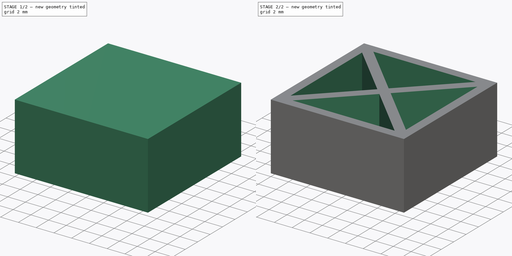
[diagram: build sequence overview — one tinted view per stage of 2, left to right]
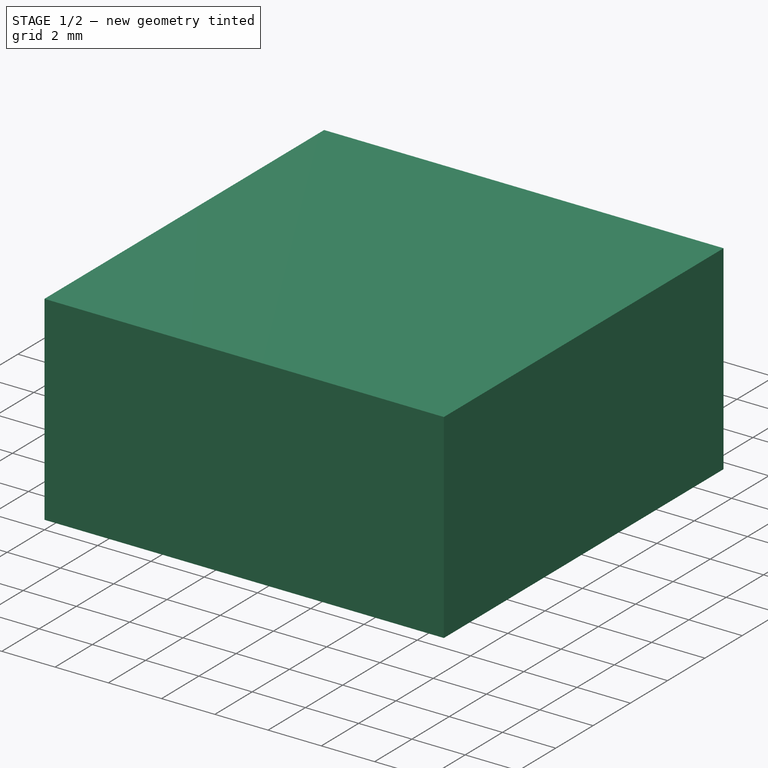
[diagram: stage 1 of 2 — iso view after this stage's code; geometry added in this stage tinted green]
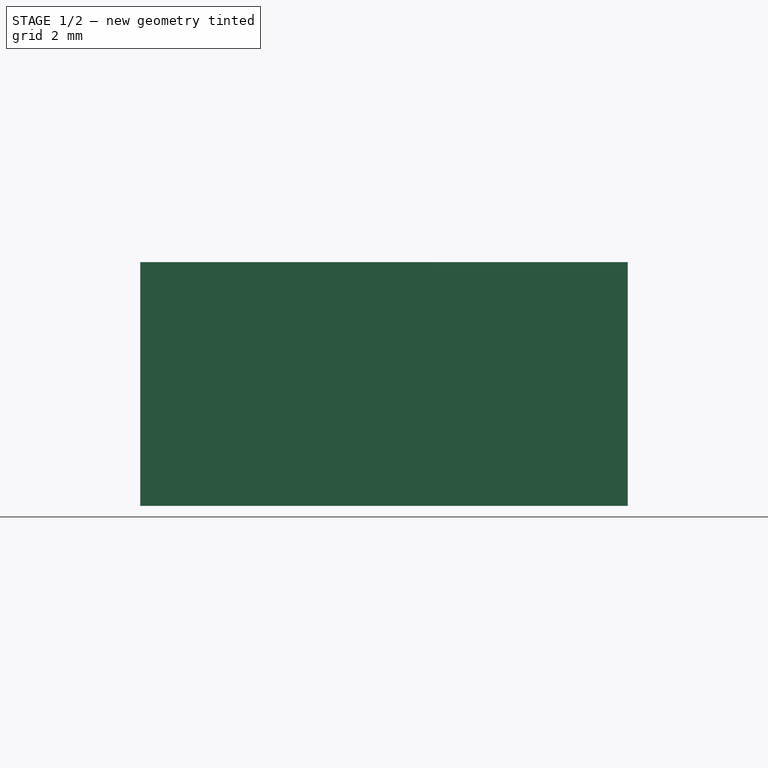
[diagram: stage 1 of 2 — front view after this stage's code; geometry added in this stage tinted green]
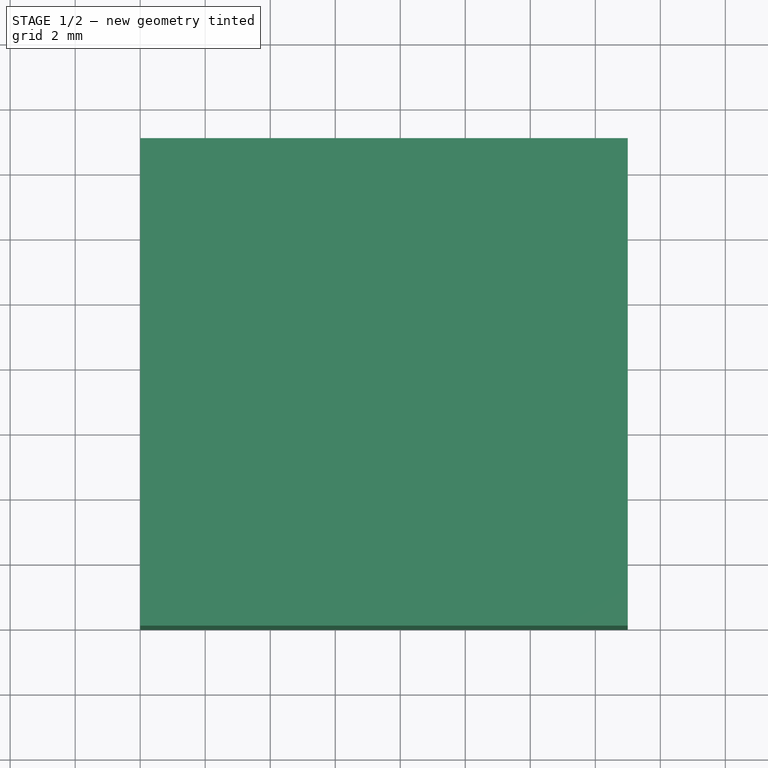
[diagram: stage 1 of 2 — top view after this stage's code; geometry added in this stage tinted green]
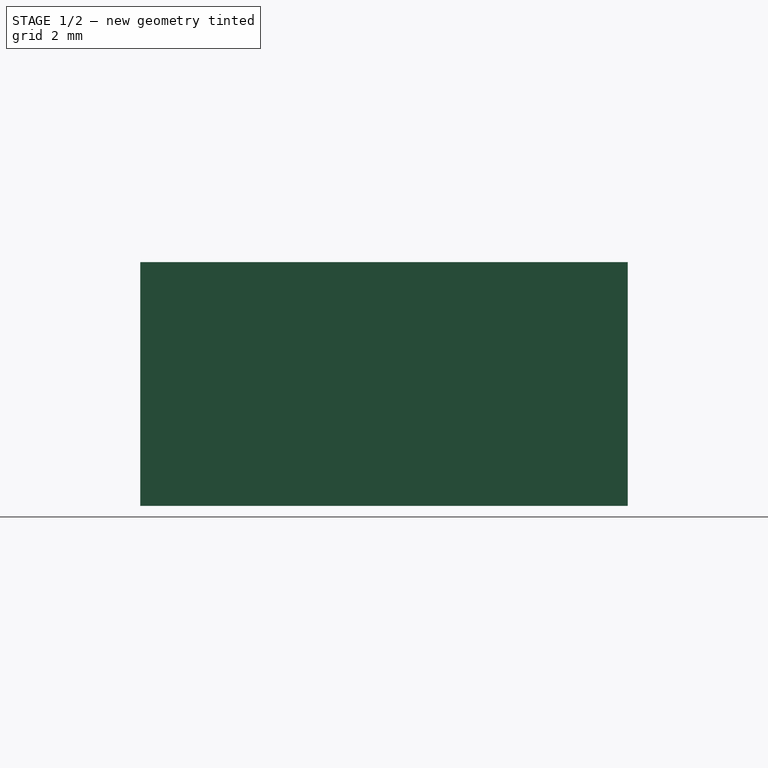
[diagram: stage 1 of 2 — right view after this stage's code; geometry added in this stage tinted green]
FCSTD DOCUMENT  (FreeCAD 1.0R39109 (Git))
Label: Reinforment
License: All rights reserved
LicenseURL: https://en.wikipedia.org/wiki/All_rights_reserved
objects: Sketcher::SketchObject×2, PartDesign::Pad×1, PartDesign::Pocket×1, PartDesign::Body×1
note: 11 computed .brp shape members not serialized (recipe doc carries the construction recipe); baked Part::Feature solids carry a one-line shape summary decoded from their .brp

FEATURE [Sketcher::SketchObject] Sketch
  ArcFitTolerance = 1e-06
  AttachmentSupport = -> [XY_Plane]
  FullyConstrained = true
  MakeInternals = false
  MapMode = 5
  sketch-geometry (4):
    g0: LineSegment StartX=0 StartY=0 StartZ=0 EndX=15 EndY=0 EndZ=0
    g1: LineSegment StartX=15 StartY=0 StartZ=0 EndX=15 EndY=15 EndZ=0
    g2: LineSegment StartX=15 StartY=15 StartZ=0 EndX=0 EndY=15 EndZ=0
    g3: LineSegment StartX=0 StartY=15 StartZ=0 EndX=0 EndY=0 EndZ=0
  constraints (11):
    c: Coincident(g0,g1)
    c: Coincident(g1,g2)
    c: Coincident(g2,g3)
    c: Coincident(g3,g0)
    c: Horizontal(g0)
    c: Horizontal(g2)
    c: Vertical(g1)
    c: Vertical(g3)
    c: Distance(g1,g3) = 15
    c: Distance(g0,g2) = 15
    c: Coincident(g0,g-1)
FEATURE [PartDesign::Pad] Pad
  Direction = (0,0,1)
  Length = 7.5
  Length2 = 10
  Profile = -> Sketch
  ReferenceAxis = -> Sketch [N_Axis]
  Refine = true
  Suppressed = false
  Type = 0
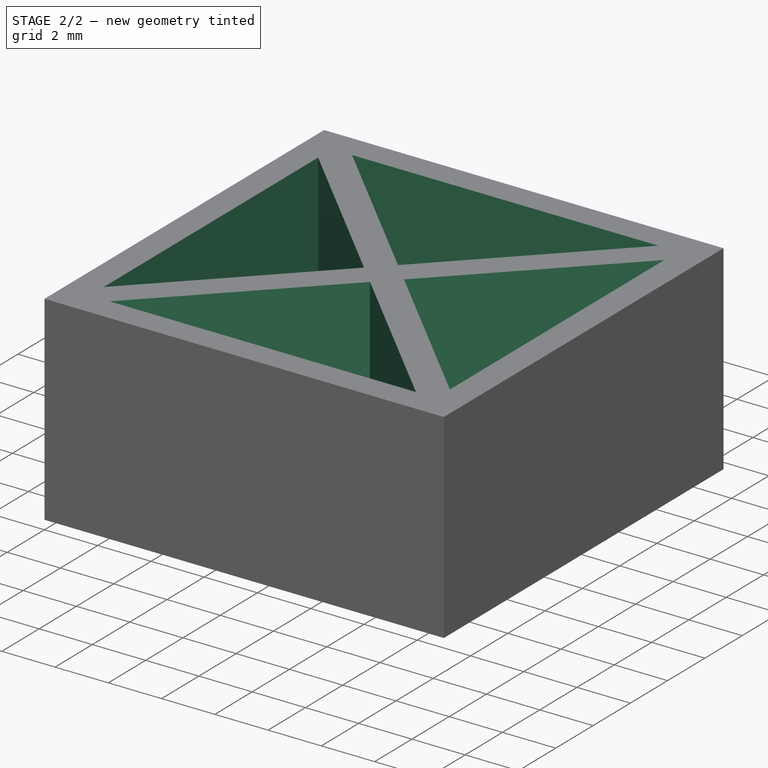
[diagram: stage 2 of 2 — iso view after this stage's code; geometry added in this stage tinted green]
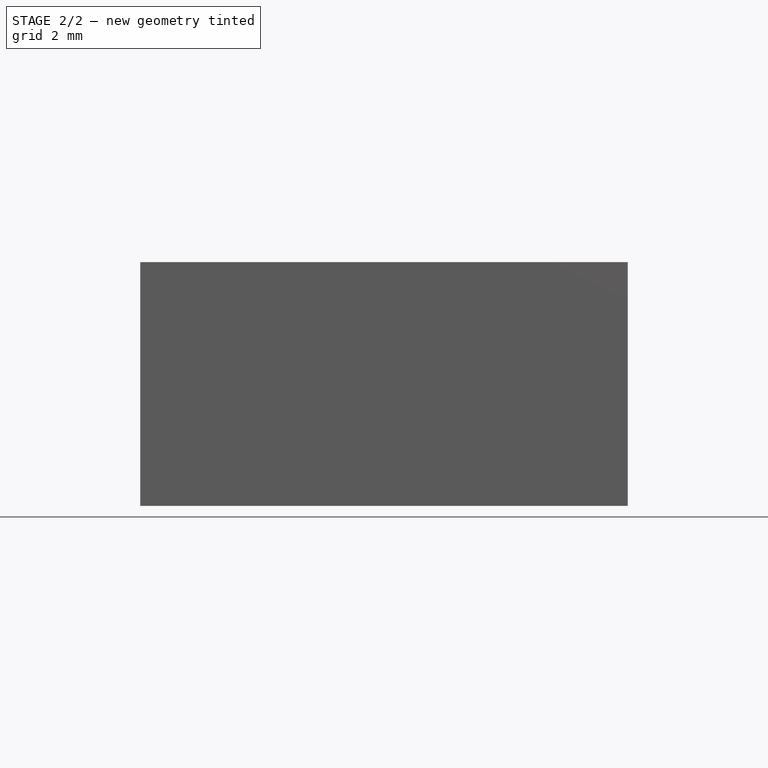
[diagram: stage 2 of 2 — front view after this stage's code; geometry added in this stage tinted green]
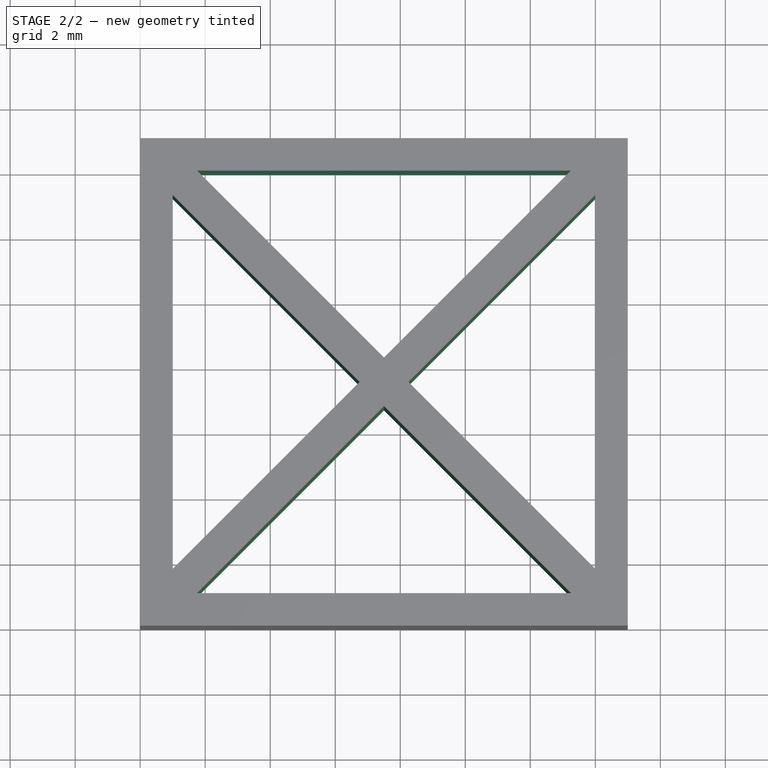
[diagram: stage 2 of 2 — top view after this stage's code; geometry added in this stage tinted green]
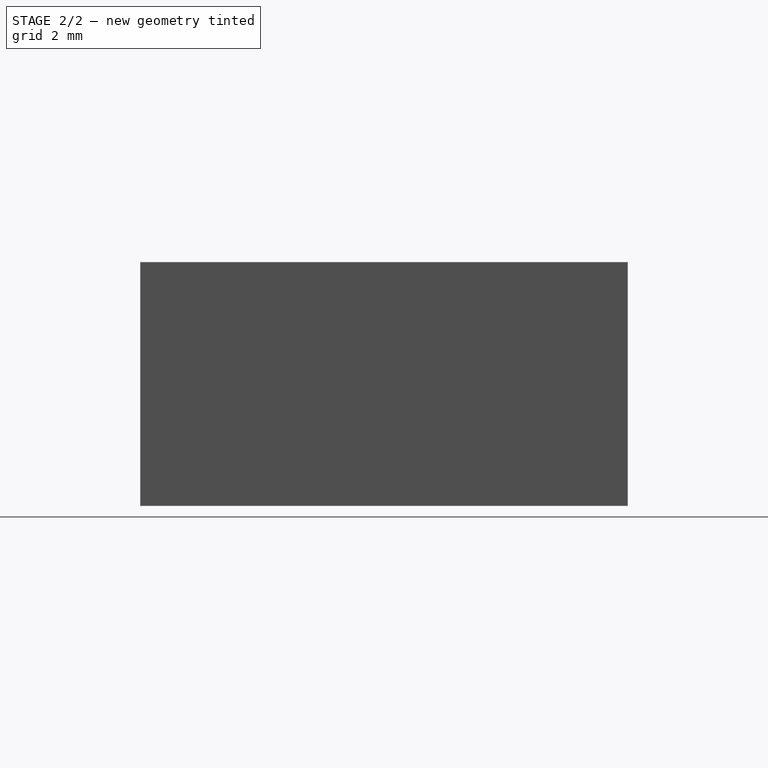
[diagram: stage 2 of 2 — right view after this stage's code; geometry added in this stage tinted green]
FEATURE [Sketcher::SketchObject] Sketch005
  ArcFitTolerance = 1e-06
  AttachmentSupport = -> [Pad]
  ExternalGeometry = -> [Pad]
  FullyConstrained = true
  MakeInternals = false
  MapMode = 5
  Placement = pos=(0,0,7.5) rot=(0,0,1;0rad)
  sketch-geometry (28):
    g0: LineSegment StartX=1.75 StartY=14 StartZ=0 EndX=13.25 EndY=14 EndZ=0
    g1: LineSegment StartX=13.25 StartY=14 StartZ=0 EndX=7.5 EndY=8.25 EndZ=0
    g2: LineSegment StartX=7.5 StartY=8.25 StartZ=0 EndX=1.75 EndY=14 EndZ=0
    g3: LineSegment StartX=1 StartY=13.25 StartZ=0 EndX=6.75 EndY=7.5 EndZ=0
    g4: LineSegment StartX=6.75 StartY=7.5 StartZ=0 EndX=1 EndY=1.75 EndZ=0
    g5: LineSegment StartX=1 StartY=1.75 StartZ=0 EndX=1 EndY=13.25 EndZ=0
    g6: LineSegment StartX=1.75 StartY=1 StartZ=0 EndX=7.5 EndY=6.75 EndZ=0
    g7: LineSegment StartX=7.5 StartY=6.75 StartZ=0 EndX=13.25 EndY=1 EndZ=0
    g8: LineSegment StartX=13.25 StartY=1 StartZ=0 EndX=1.75 EndY=1 EndZ=0
    g9: LineSegment StartX=8.25 StartY=7.5 StartZ=0 EndX=14 EndY=13.25 EndZ=0
    g10: LineSegment StartX=14 StartY=13.25 StartZ=0 EndX=14 EndY=1.75 EndZ=0
    g11: LineSegment StartX=14 StartY=1.75 StartZ=0 EndX=8.25 EndY=7.5 EndZ=0
    g12: LineSegment [constr] StartX=15 StartY=15 StartZ=0 EndX=13.25 EndY=15 EndZ=0
    g13: LineSegment [constr] StartX=13.25 StartY=15 StartZ=0 EndX=13.25 EndY=13.25 EndZ=0
    g14: LineSegment [constr] StartX=13.25 StartY=13.25 StartZ=0 EndX=15 EndY=13.25 EndZ=0
    g15: LineSegment [constr] StartX=15 StartY=13.25 StartZ=0 EndX=15 EndY=15 EndZ=0
    g16: LineSegment [constr] StartX=0 StartY=15 StartZ=0 EndX=0 EndY=13.25 EndZ=0
    g17: LineSegment [constr] StartX=0 StartY=13.25 StartZ=0 EndX=1.75 EndY=13.25 EndZ=0
    g18: LineSegment [constr] StartX=1.75 StartY=13.25 StartZ=0 EndX=1.75 EndY=15 EndZ=0
    g19: LineSegment [constr] StartX=1.75 StartY=15 StartZ=0 EndX=0 EndY=15 EndZ=0
    g20: LineSegment [constr] StartX=0 StartY=0 StartZ=0 EndX=1.75 EndY=0 EndZ=0
    g21: LineSegment [constr] StartX=1.75 StartY=0 StartZ=0 EndX=1.75 EndY=1.75 EndZ=0
    g22: LineSegment [constr] StartX=1.75 StartY=1.75 StartZ=0 EndX=0 EndY=1.75 EndZ=0
    g23: LineSegment [constr] StartX=0 StartY=1.75 StartZ=0 EndX=0 EndY=0 EndZ=0
    g24: LineSegment [constr] StartX=15 StartY=0 StartZ=0 EndX=15 EndY=1.75 EndZ=0
    g25: LineSegment [constr] StartX=15 StartY=1.75 StartZ=0 EndX=13.25 EndY=1.75 EndZ=0
    g26: LineSegment [constr] StartX=13.25 StartY=1.75 StartZ=0 EndX=13.25 EndY=0 EndZ=0
    g27: LineSegment [constr] StartX=13.25 StartY=0 StartZ=0 EndX=15 EndY=0 EndZ=0
  constraints (80):
    c: Horizontal(g0)
    c: Coincident(g0,g1)
    c: Coincident(g1,g2)
    c: Coincident(g2,g0)
    c: Coincident(g3,g4)
    c: Coincident(g4,g5)
    c: Coincident(g5,g3)
    c: Coincident(g6,g7)
    c: Coincident(g7,g8)
    c: Coincident(g8,g6)
    c: Coincident(g9,g10)
    c: Vertical(g10)
    c: Coincident(g10,g11)
    c: Coincident(g11,g9)
    c: Parallel(g5,g-6)
    c: Parallel(g8,g-5)
    c: Equal(g1,g9)
    c: Equal(g2,g3)
    c: Equal(g4,g6)
    c: Equal(g7,g11)
    c: Distance(g-3,g0) = 1
    c: Distance(g-4,g10) = 1
    c: Distance(g-5,g8) = 1
    c: Distance(g-6,g5) = 1
    c: Parallel(g4,g6)
    c: Parallel(g7,g11)
    c: Parallel(g9,g1)
    c: Parallel(g2,g3)
    c: Coincident(g12,g13)
    c: Coincident(g13,g14)
    c: Coincident(g14,g15)
    c: Coincident(g15,g12)
    c: Horizontal(g12)
    c: Horizontal(g14)
    c: Vertical(g13)
    c: Vertical(g15)
    c: Distance(g13,g15) = 1.75
    c: Distance(g12,g14) = 1.75
    c: Coincident(g12,g-4)
    c: PointOnObject(g9,g14)
    c: PointOnObject(g0,g13)
    c: Coincident(g16,g17)
    c: Coincident(g17,g18)
    c: Coincident(g18,g19)
    c: Coincident(g19,g16)
    c: Vertical(g16)
    c: Vertical(g18)
    c: Horizontal(g17)
    c: Horizontal(g19)
    c: Distance(g16,g18) = 1.75
    c: Distance(g17,g19) = 1.75
    c: Coincident(g16,g-6)
    c: PointOnObject(g0,g18)
    c: Coincident(g20,g21)
    c: Coincident(g21,g22)
    c: Coincident(g22,g23)
    c: Coincident(g23,g20)
    c: Horizontal(g20)
    c: Horizontal(g22)
    c: Vertical(g21)
    c: Vertical(g23)
    c: Distance(g21,g23) = 1.75
    c: Distance(g20,g22) = 1.75
    c: Coincident(g20,g-1)
    c: PointOnObject(g6,g21)
    c: PointOnObject(g4,g22)
    c: PointOnObject(g3,g17)
    c: Coincident(g24,g25)
    c: Coincident(g25,g26)
    c: Coincident(g26,g27)
    c: Coincident(g27,g24)
    c: Vertical(g24)
    c: Vertical(g26)
    c: Horizontal(g25)
    c: Horizontal(g27)
    c: Distance(g24,g26) = 1.75
    c: Distance(g25,g27) = 1.75
    c: Coincident(g24,g-5)
    c: Equal(g11,g2)
    c: Equal(g4,g1)
FEATURE [PartDesign::Pocket] Pocket
  BaseFeature = -> Pad
  Direction = (0,0,-1)
  Length = 8
  Length2 = 5
  Profile = -> Sketch005
  ReferenceAxis = -> Sketch005 [N_Axis]
  Refine = true
  Suppressed = false
  Type = 1
FEATURE [PartDesign::Body] Body  label="reinforcement"
  AllowCompound = false
  Group = -> [Sketch,Pad,Sketch005,Pocket]
  Origin = -> Origin
  Tip = -> Pocket
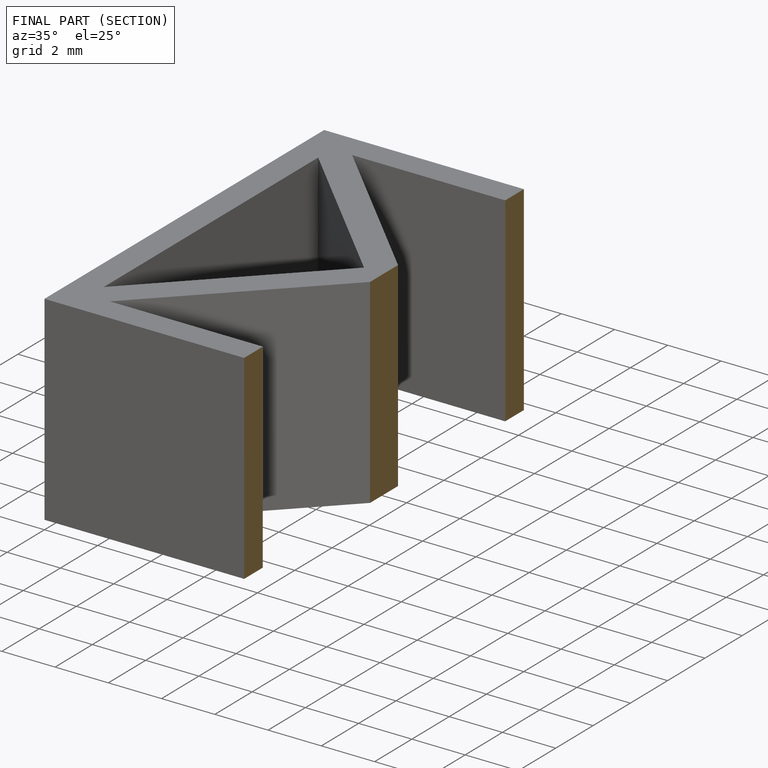
[diagram: finished part — half-section view (interior)]
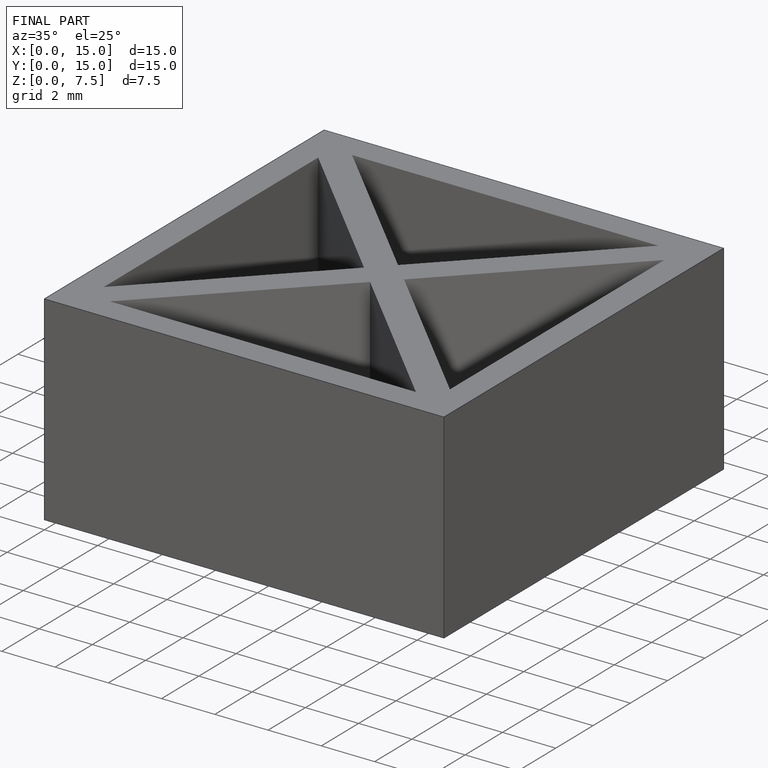
[diagram: finished part — iso view with bounding-box wireframe]
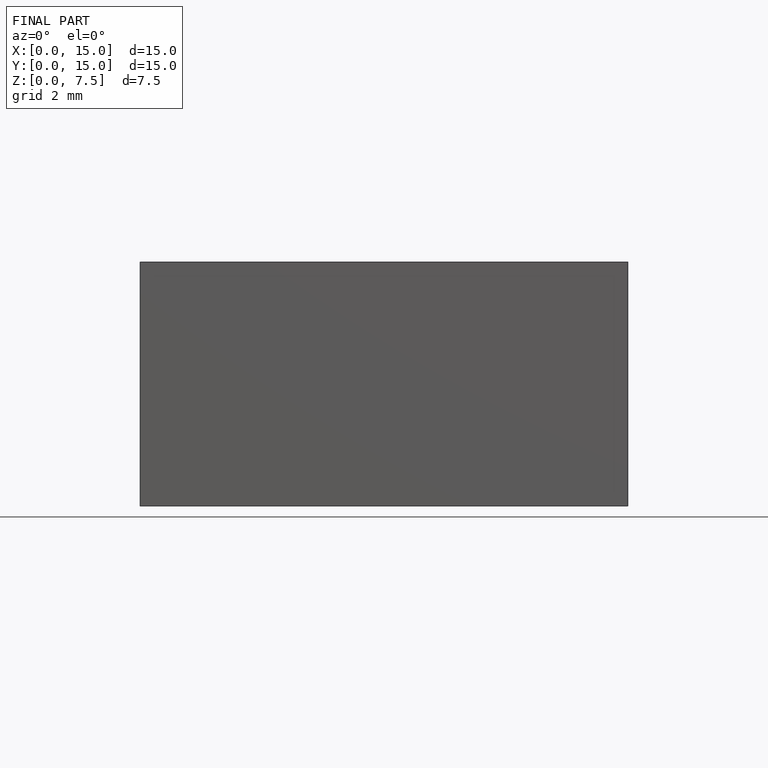
[diagram: finished part — front view with bounding-box wireframe]
